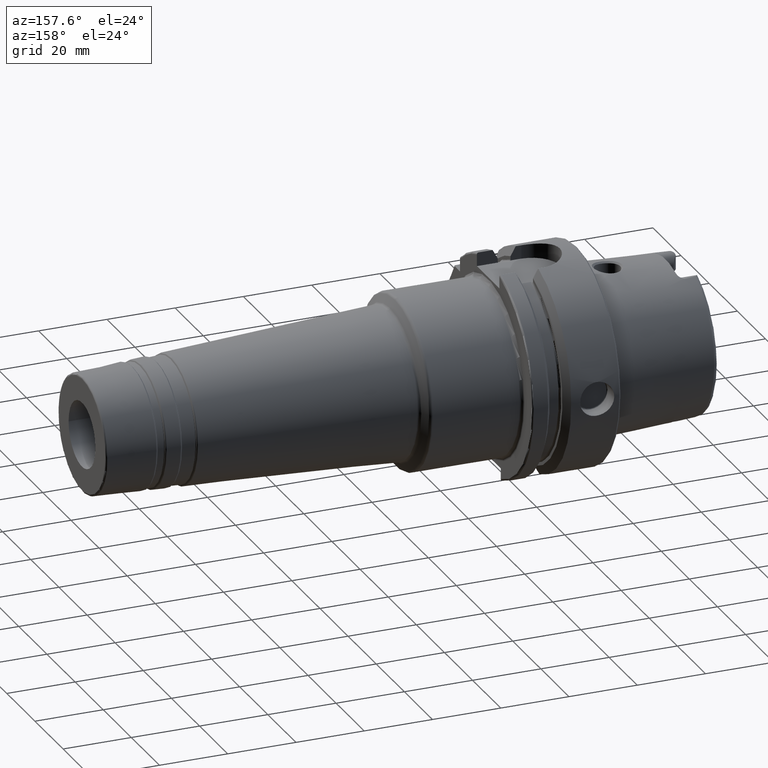
[diagram: clean part render]
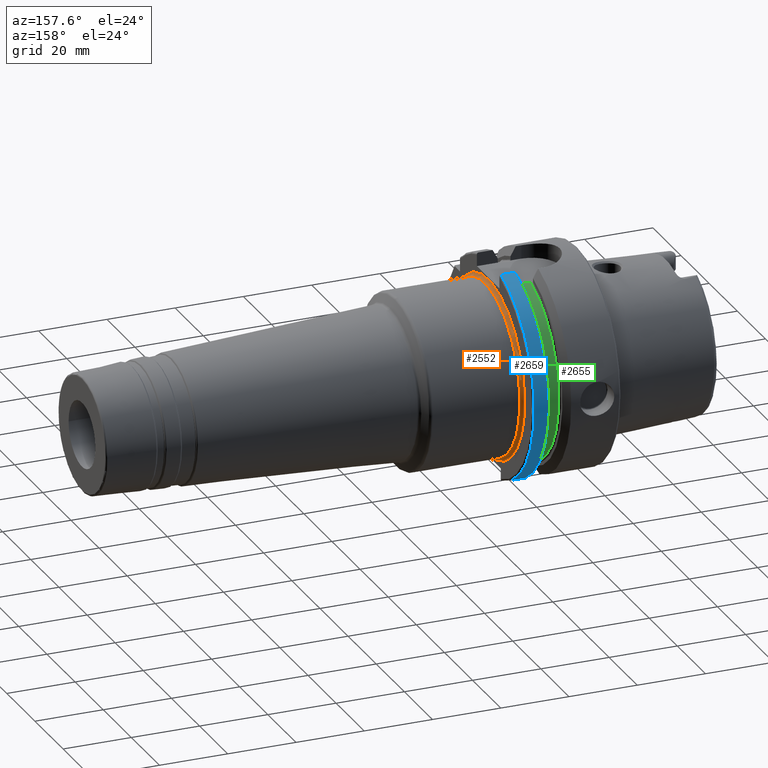
[diagram: same view with three faces highlighted in distinct colors, each labeled with its STEP entity id]
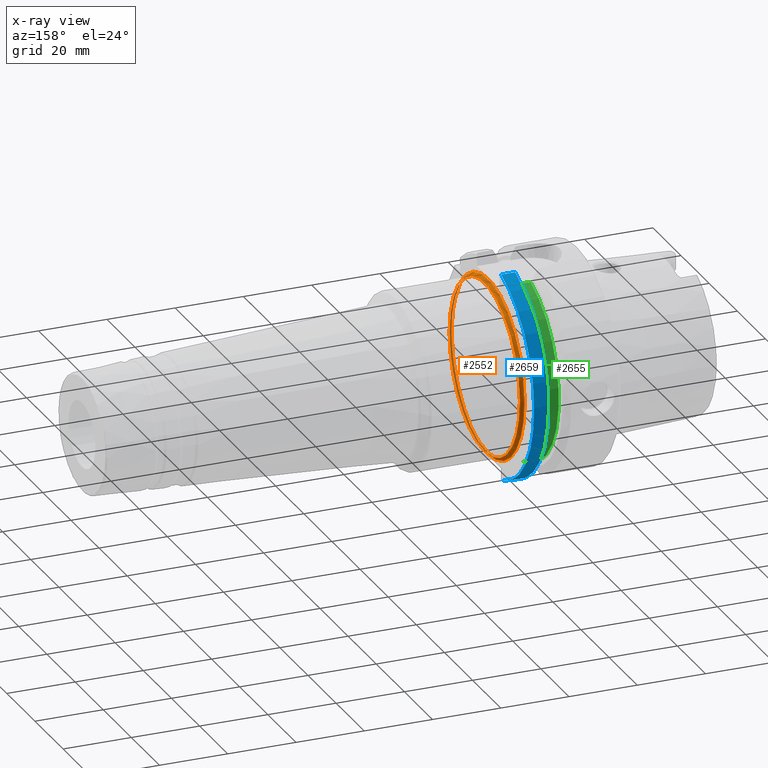
[diagram: x-ray of the same camera — body ghosted, the three highlighted faces saturated]
A machine part, auxiliary view with three faces highlighted in distinct colors.
The next image is the same camera in x-ray (body ghosted, the three faces saturated) — at least one of them is partly hidden behind the body in this view.
Their STEP definitions:

[orange] entity #2552 — the highlighted toroidal blend (fillet) surface has major radius 26 mm and minor (blend) radius 1 mm.
#161=TOROIDAL_SURFACE('',#2795,26.,1.);
#243=FACE_OUTER_BOUND('',#379,.T.);
#379=EDGE_LOOP('',(#1860,#1861,#1862,#1863,#1864,#1865,#1866));
#817=CIRCLE('',#2792,25.);
#818=CIRCLE('',#2793,25.);
#819=CIRCLE('',#2794,25.);
#820=CIRCLE('',#2796,1.);
#821=CIRCLE('',#2797,26.);
#822=CIRCLE('',#2798,26.);
#1028=VERTEX_POINT('',#4088);
#1029=VERTEX_POINT('',#4090);
#1030=VERTEX_POINT('',#4092);
#1031=VERTEX_POINT('',#4096);
#1032=VERTEX_POINT('',#4098);
#1344=EDGE_CURVE('',#1029,#1028,#817,.T.);
#1345=EDGE_CURVE('',#1030,#1029,#818,.T.);
#1346=EDGE_CURVE('',#1028,#1030,#819,.T.);
#1347=EDGE_CURVE('',#1029,#1031,#820,.T.);
#1348=EDGE_CURVE('',#1031,#1032,#821,.T.);
#1349=EDGE_CURVE('',#1032,#1031,#822,.T.);
#1860=ORIENTED_EDGE('',*,*,#1345,.T.);
#1861=ORIENTED_EDGE('',*,*,#1347,.T.);
#1862=ORIENTED_EDGE('',*,*,#1348,.T.);
#1863=ORIENTED_EDGE('',*,*,#1349,.T.);
#1864=ORIENTED_EDGE('',*,*,#1347,.F.);
#1865=ORIENTED_EDGE('',*,*,#1344,.T.);
#1866=ORIENTED_EDGE('',*,*,#1346,.T.);
#2552=ADVANCED_FACE('',(#243),#161,.F.);
#2792=AXIS2_PLACEMENT_3D('',#4091,#3282,#3283);
#2793=AXIS2_PLACEMENT_3D('',#4093,#3284,#3285);
#2794=AXIS2_PLACEMENT_3D('',#4094,#3286,#3287);
#2795=AXIS2_PLACEMENT_3D('',#4095,#3288,#3289);
#2796=AXIS2_PLACEMENT_3D('',#4097,#3290,#3291);
#2797=AXIS2_PLACEMENT_3D('',#4099,#3292,#3293);
#2798=AXIS2_PLACEMENT_3D('',#4100,#3294,#3295);
#3282=DIRECTION('center_axis',(-1.,0.,0.));
#3283=DIRECTION('ref_axis',(0.,-1.,-1.22464679914735E-16));
#3284=DIRECTION('center_axis',(-1.,0.,0.));
#3285=DIRECTION('ref_axis',(0.,-1.,-1.22464679914735E-16));
#3286=DIRECTION('center_axis',(-1.,0.,0.));
#3287=DIRECTION('ref_axis',(0.,-1.,-1.22464679914735E-16));
#3288=DIRECTION('center_axis',(-1.,0.,0.));
#3289=DIRECTION('ref_axis',(0.,0.,1.));
#3290=DIRECTION('center_axis',(0.,-1.,1.22464679914735E-16));
#3291=DIRECTION('ref_axis',(0.,-1.22464679914735E-16,-1.));
#3292=DIRECTION('center_axis',(1.,0.,0.));
#3293=DIRECTION('ref_axis',(0.,-1.,-1.22464679914735E-16));
#3294=DIRECTION('center_axis',(1.,0.,0.));
#3295=DIRECTION('ref_axis',(0.,-1.,-1.22464679914735E-16));
#4088=CARTESIAN_POINT('',(27.,-25.,-3.06161699786838E-15));
#4090=CARTESIAN_POINT('',(27.,-3.06161699786838E-15,-25.));
#4091=CARTESIAN_POINT('Origin',(27.,0.,0.));
#4092=CARTESIAN_POINT('',(27.,25.,0.));
#4093=CARTESIAN_POINT('Origin',(27.,0.,0.));
#4094=CARTESIAN_POINT('Origin',(27.,0.,0.));
#4095=CARTESIAN_POINT('Origin',(27.,0.,0.));
#4096=CARTESIAN_POINT('',(26.,-3.18408167778312E-15,-26.));
#4097=CARTESIAN_POINT('Origin',(27.,-3.18408167778312E-15,-26.));
#4098=CARTESIAN_POINT('',(26.,26.,6.36816335556624E-15));
#4099=CARTESIAN_POINT('Origin',(26.,0.,0.));
#4100=CARTESIAN_POINT('Origin',(26.,0.,0.));

[blue] entity #2659 — the highlighted cylindrical surface (partial cylindrical patch) has radius 31.5 mm, axis along (1, 0, 0).
#216=CYLINDRICAL_SURFACE('',#3041,31.5);
#350=FACE_OUTER_BOUND('',#496,.T.);
#496=EDGE_LOOP('',(#2494,#2495,#2496,#2497));
#566=LINE('',#5023,#683);
#591=LINE('',#5283,#708);
#683=VECTOR('',#3550,10.);
#708=VECTOR('',#3645,10.);
#952=CIRCLE('',#3040,31.5);
#953=CIRCLE('',#3042,31.5);
#1156=VERTEX_POINT('',#5018);
#1157=VERTEX_POINT('',#5022);
#1192=VERTEX_POINT('',#5271);
#1193=VERTEX_POINT('',#5282);
#1508=EDGE_CURVE('',#1157,#1156,#566,.T.);
#1568=EDGE_CURVE('',#1193,#1192,#591,.T.);
#1662=EDGE_CURVE('',#1156,#1193,#952,.T.);
#1663=EDGE_CURVE('',#1157,#1192,#953,.T.);
#2494=ORIENTED_EDGE('',*,*,#1508,.T.);
#2495=ORIENTED_EDGE('',*,*,#1662,.T.);
#2496=ORIENTED_EDGE('',*,*,#1568,.T.);
#2497=ORIENTED_EDGE('',*,*,#1663,.F.);
#2659=ADVANCED_FACE('',(#350),#216,.T.);
#3040=AXIS2_PLACEMENT_3D('',#5551,#3881,#3882);
#3041=AXIS2_PLACEMENT_3D('',#5552,#3883,#3884);
#3042=AXIS2_PLACEMENT_3D('',#5553,#3885,#3886);
#3550=DIRECTION('',(-1.,0.,0.));
#3645=DIRECTION('',(1.,0.,0.));
#3881=DIRECTION('center_axis',(1.,0.,0.));
#3882=DIRECTION('ref_axis',(0.,0.,-1.));
#3883=DIRECTION('center_axis',(1.,0.,0.));
#3884=DIRECTION('ref_axis',(0.,1.,0.));
#3885=DIRECTION('center_axis',(1.,0.,0.));
#3886=DIRECTION('ref_axis',(0.,0.,-1.));
#5018=CARTESIAN_POINT('',(21.3774990747593,9.,-30.1869176962472));
#5022=CARTESIAN_POINT('',(25.5,9.,-30.1869176962472));
#5023=CARTESIAN_POINT('',(23.4387495373797,9.,-30.1869176962472));
#5271=CARTESIAN_POINT('',(25.5,8.,30.4671954731642));
#5282=CARTESIAN_POINT('',(21.3774990747593,8.,30.4671954731642));
#5283=CARTESIAN_POINT('',(23.4387495373797,8.,30.4671954731642));
#5551=CARTESIAN_POINT('Origin',(21.3774990747593,0.,0.));
#5552=CARTESIAN_POINT('Origin',(23.4387495373797,0.,0.));
#5553=CARTESIAN_POINT('Origin',(25.5,0.,0.));

[green] entity #2655 — the highlighted cylindrical surface (partial cylindrical patch) has radius 27.5 mm, axis along (1, 0, 0).
#215=CYLINDRICAL_SURFACE('',#3033,27.5);
#346=FACE_OUTER_BOUND('',#492,.T.);
#492=EDGE_LOOP('',(#2476,#2477,#2478,#2479));
#580=LINE('',#5133,#697);
#595=LINE('',#5320,#712);
#697=VECTOR('',#3584,10.);
#712=VECTOR('',#3653,10.);
#892=CIRCLE('',#2937,27.5);
#949=CIRCLE('',#3034,27.5);
#1174=VERTEX_POINT('',#5121);
#1175=VERTEX_POINT('',#5132);
#1198=VERTEX_POINT('',#5308);
#1199=VERTEX_POINT('',#5319);
#1535=EDGE_CURVE('',#1175,#1174,#580,.T.);
#1576=EDGE_CURVE('',#1199,#1198,#595,.T.);
#1578=EDGE_CURVE('',#1174,#1199,#892,.T.);
#1659=EDGE_CURVE('',#1175,#1198,#949,.T.);
#2476=ORIENTED_EDGE('',*,*,#1535,.T.);
#2477=ORIENTED_EDGE('',*,*,#1578,.T.);
#2478=ORIENTED_EDGE('',*,*,#1576,.T.);
#2479=ORIENTED_EDGE('',*,*,#1659,.F.);
#2655=ADVANCED_FACE('',(#346),#215,.T.);
#2937=AXIS2_PLACEMENT_3D('',#5332,#3656,#3657);
#3033=AXIS2_PLACEMENT_3D('',#5544,#3867,#3868);
#3034=AXIS2_PLACEMENT_3D('',#5545,#3869,#3870);
#3584=DIRECTION('',(-1.,0.,0.));
#3653=DIRECTION('',(1.,0.,0.));
#3656=DIRECTION('center_axis',(1.,0.,0.));
#3657=DIRECTION('ref_axis',(0.,0.,-1.));
#3867=DIRECTION('center_axis',(1.,0.,0.));
#3868=DIRECTION('ref_axis',(0.,1.,0.));
#3869=DIRECTION('center_axis',(1.,0.,0.));
#3870=DIRECTION('ref_axis',(0.,0.,-1.));
#5121=CARTESIAN_POINT('',(16.625,7.34846922834952,-26.5));
#5132=CARTESIAN_POINT('',(19.375,7.34846922834952,-26.5));
#5133=CARTESIAN_POINT('',(18.,7.34846922834952,-26.5));
#5308=CARTESIAN_POINT('',(19.375,7.34846922834952,26.5));
#5319=CARTESIAN_POINT('',(16.625,7.34846922834952,26.5));
#5320=CARTESIAN_POINT('',(18.,7.34846922834952,26.5));
#5332=CARTESIAN_POINT('Origin',(16.625,0.,0.));
#5544=CARTESIAN_POINT('Origin',(18.,0.,0.));
#5545=CARTESIAN_POINT('Origin',(19.375,0.,0.));